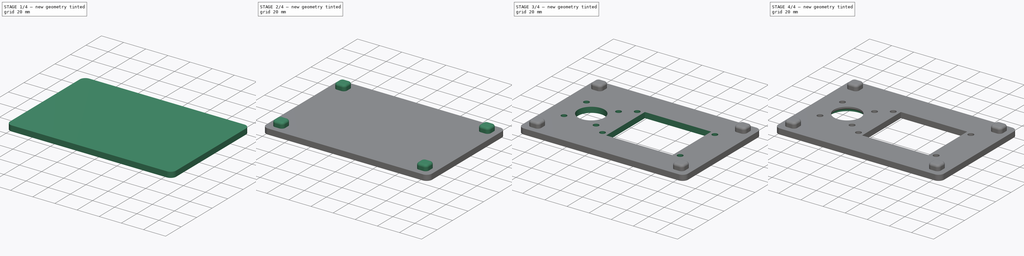
[diagram: build sequence overview — one tinted view per stage of 4, left to right]
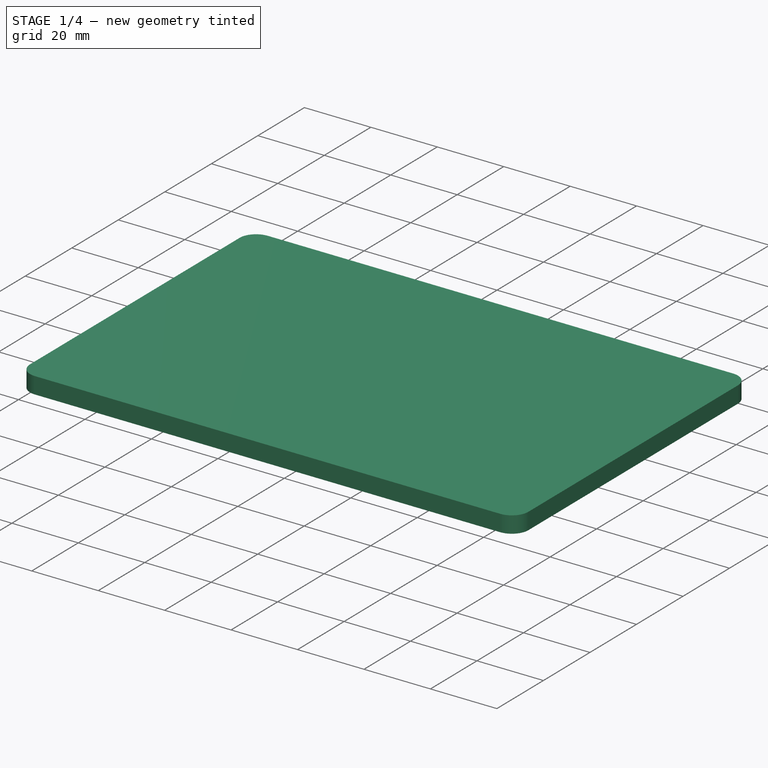
[diagram: stage 1 of 4 — iso view after this stage's code; geometry added in this stage tinted green]
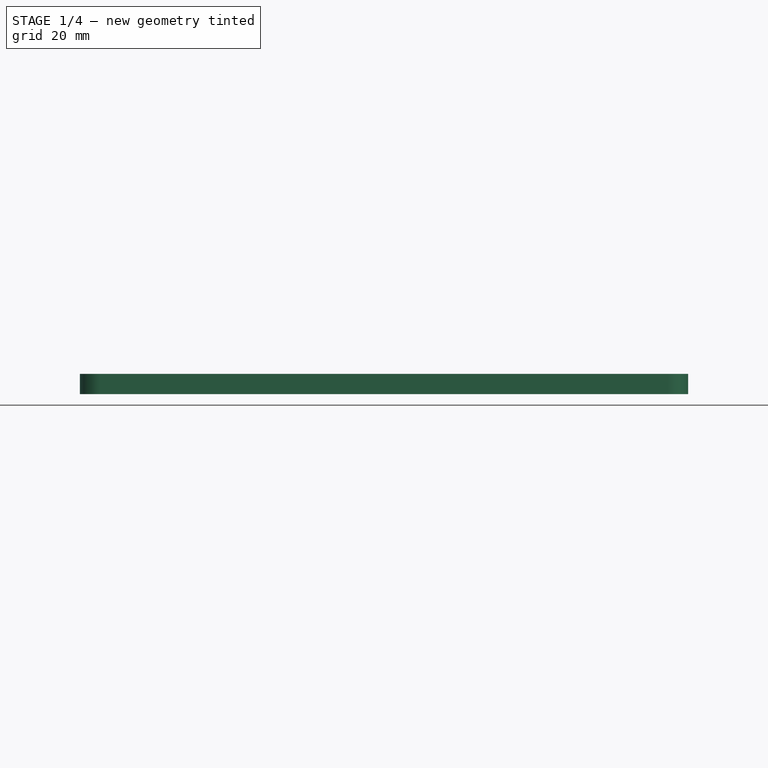
[diagram: stage 1 of 4 — front view after this stage's code; geometry added in this stage tinted green]
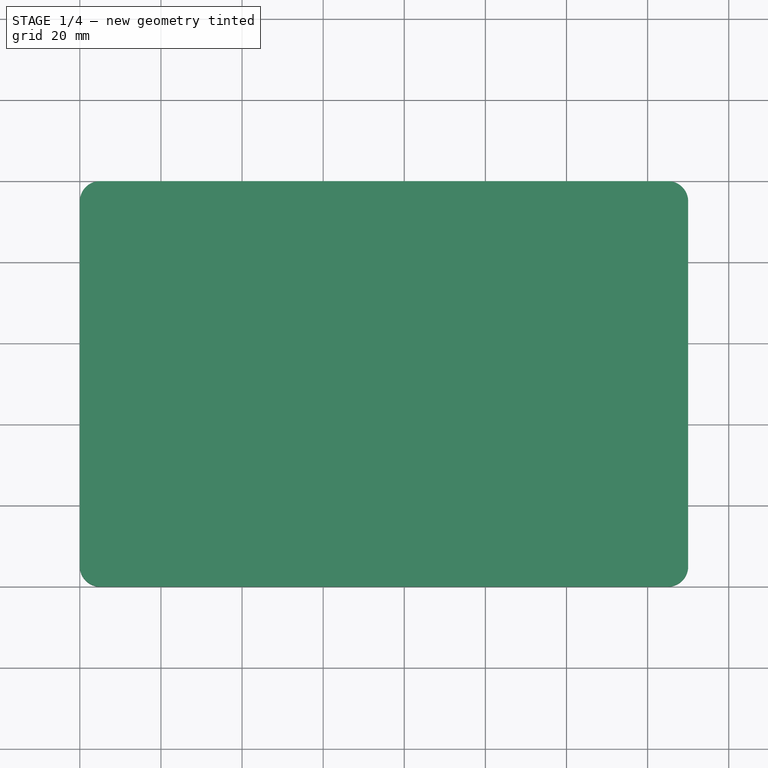
[diagram: stage 1 of 4 — top view after this stage's code; geometry added in this stage tinted green]
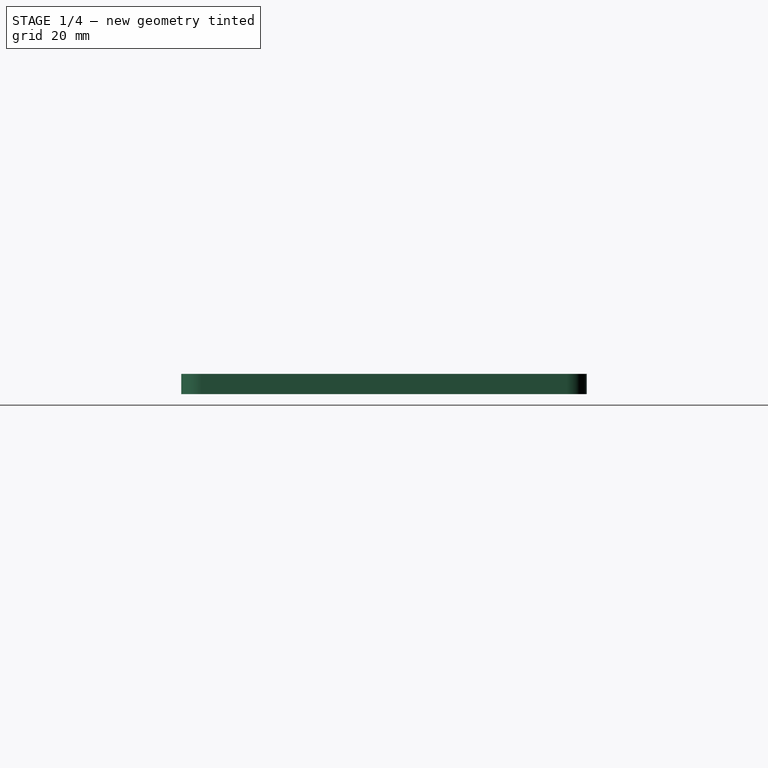
[diagram: stage 1 of 4 — right view after this stage's code; geometry added in this stage tinted green]
FCSTD DOCUMENT  (FreeCAD 0.16R6607 (Git))
Label: taz_dual_harness_internal
License: CC-BY 3.0
LicenseURL: http://creativecommons.org/licenses/by/3.0/
objects: Sketcher::SketchObject×6, PartDesign::Pocket×4, PartDesign::Fillet×3, PartDesign::Pad×2, PartDesign::Chamfer×1
note: 22 computed .brp shape members not serialized (recipe doc carries the construction recipe); baked Part::Feature solids carry a one-line shape summary decoded from their .brp

FEATURE [Sketcher::SketchObject] Sketch
  sketch-geometry (4):
    g0: LineSegment StartX=0 StartY=0 StartZ=0 EndX=150 EndY=0 EndZ=0
    g1: LineSegment StartX=150 StartY=0 StartZ=0 EndX=150 EndY=100 EndZ=0
    g2: LineSegment StartX=150 StartY=100 StartZ=0 EndX=0 EndY=100 EndZ=0
    g3: LineSegment StartX=0 StartY=100 StartZ=0 EndX=0 EndY=0 EndZ=0
  constraints (11):
    c: Coincident(g0,g1)
    c: Coincident(g1,g2)
    c: Coincident(g2,g3)
    c: Coincident(g3,g0)
    c: Horizontal(g0)
    c: Horizontal(g2)
    c: Vertical(g1)
    c: Vertical(g3)
    c: Coincident(g0,g-1)
    c: DistanceY(g3) = -100
    c: DistanceX(g0) = 150
FEATURE [PartDesign::Pad] Pad
  Length = 5
  Length2 = 100
  Sketch = -> Sketch
  Type = 0
FEATURE [PartDesign::Fillet] Fillet
  Base = -> Pad [Edge1,Edge2,Edge5,Edge8]
  Radius = 5
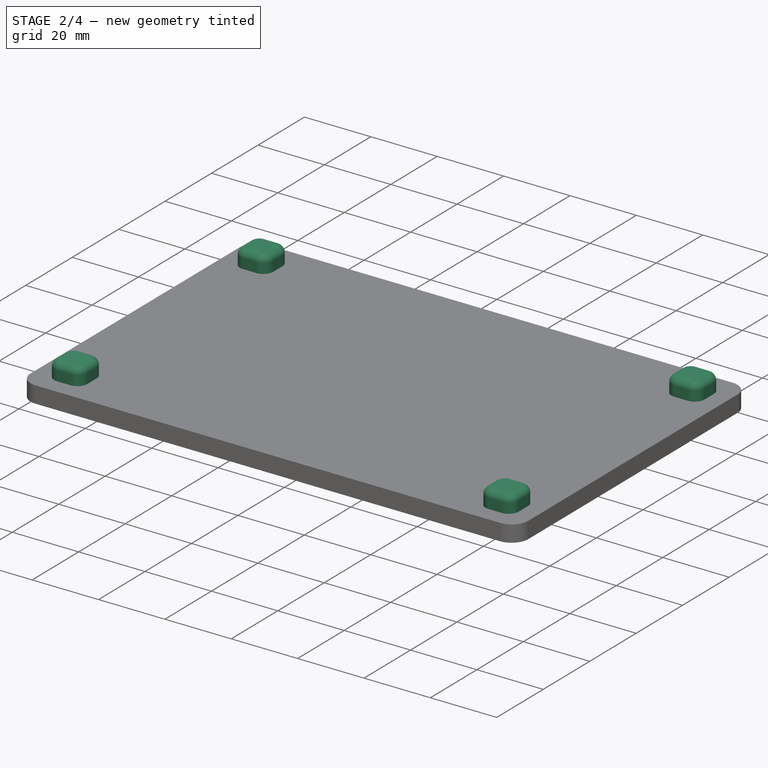
[diagram: stage 2 of 4 — iso view after this stage's code; geometry added in this stage tinted green]
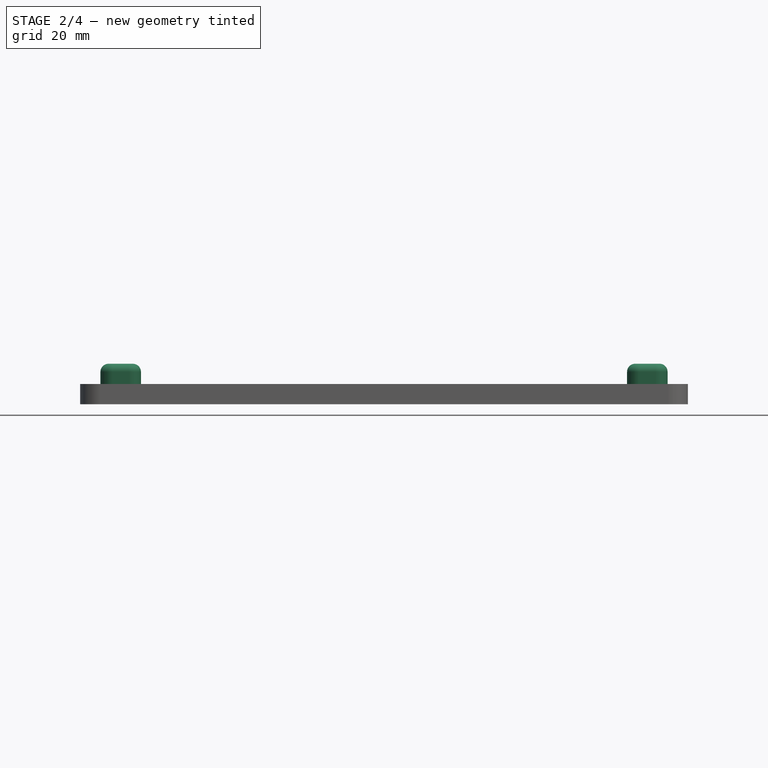
[diagram: stage 2 of 4 — front view after this stage's code; geometry added in this stage tinted green]
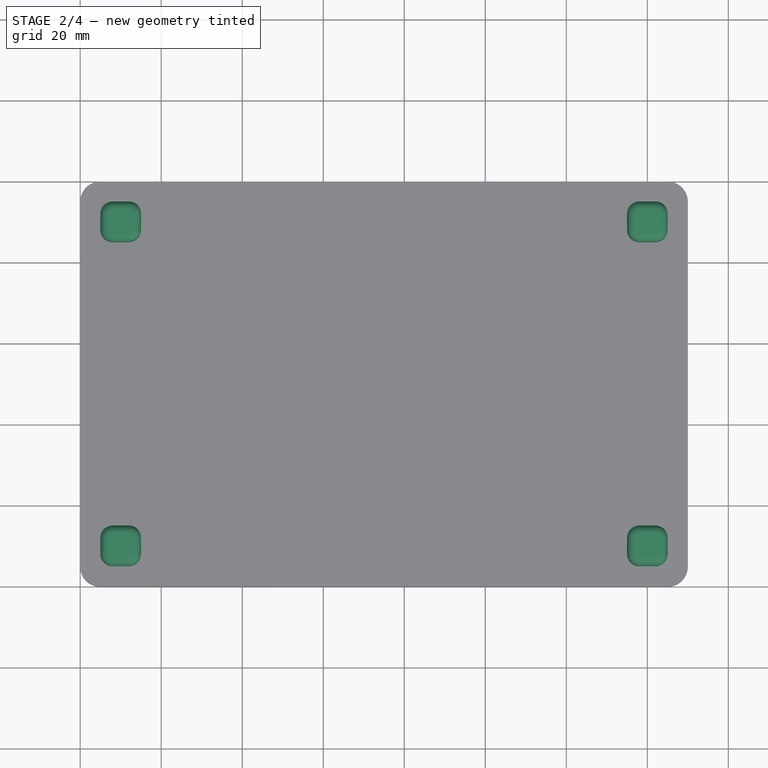
[diagram: stage 2 of 4 — top view after this stage's code; geometry added in this stage tinted green]
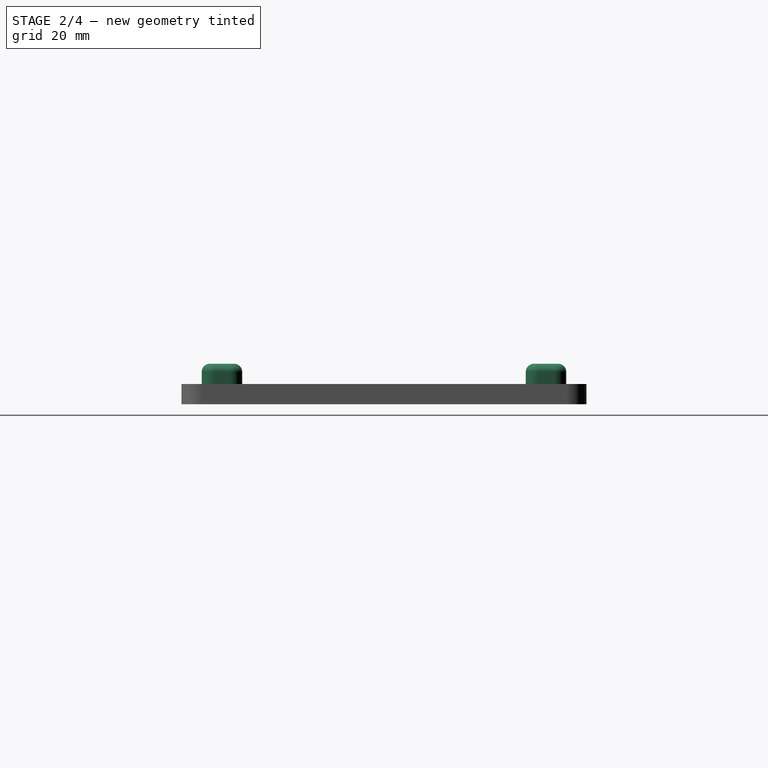
[diagram: stage 2 of 4 — right view after this stage's code; geometry added in this stage tinted green]
FEATURE [Sketcher::SketchObject] Sketch001
  Placement = pos=(0,0,5) rot=(0,0,1;0rad)
  Support = -> Fillet [Face5]
  sketch-geometry (16):
    g0: LineSegment StartX=5 StartY=5 StartZ=0 EndX=15 EndY=5 EndZ=0
    g1: LineSegment StartX=15 StartY=5 StartZ=0 EndX=15 EndY=15 EndZ=0
    g2: LineSegment StartX=15 StartY=15 StartZ=0 EndX=5 EndY=15 EndZ=0
    g3: LineSegment StartX=5 StartY=15 StartZ=0 EndX=5 EndY=5 EndZ=0
    g4: LineSegment StartX=145 StartY=95 StartZ=0 EndX=135 EndY=95 EndZ=0
    g5: LineSegment StartX=135 StartY=95 StartZ=0 EndX=135 EndY=85 EndZ=0
    g6: LineSegment StartX=135 StartY=85 StartZ=0 EndX=145 EndY=85 EndZ=0
    g7: LineSegment StartX=145 StartY=85 StartZ=0 EndX=145 EndY=95 EndZ=0
    g8: LineSegment StartX=5 StartY=95 StartZ=0 EndX=15 EndY=95 EndZ=0
    g9: LineSegment StartX=15 StartY=95 StartZ=0 EndX=15 EndY=85 EndZ=0
    g10: LineSegment StartX=15 StartY=85 StartZ=0 EndX=5 EndY=85 EndZ=0
    g11: LineSegment StartX=5 StartY=85 StartZ=0 EndX=5 EndY=95 EndZ=0
    g12: LineSegment StartX=145 StartY=5 StartZ=0 EndX=135 EndY=5 EndZ=0
    g13: LineSegment StartX=135 StartY=5 StartZ=0 EndX=135 EndY=15 EndZ=0
    g14: LineSegment StartX=135 StartY=15 StartZ=0 EndX=145 EndY=15 EndZ=0
    g15: LineSegment StartX=145 StartY=15 StartZ=0 EndX=145 EndY=5 EndZ=0
  constraints (32):
    c: Coincident(g0,g1)
    c: Coincident(g1,g2)
    c: Coincident(g2,g3)
    c: Coincident(g3,g0)
    c: Horizontal(g0)
    c: Horizontal(g2)
    c: Vertical(g1)
    c: Vertical(g3)
    c: Coincident(g4,g5)
    c: Coincident(g5,g6)
    c: Coincident(g6,g7)
    c: Coincident(g7,g4)
    c: Horizontal(g4)
    c: Horizontal(g6)
    c: Vertical(g5)
    c: Vertical(g7)
    c: Coincident(g8,g9)
    c: Coincident(g9,g10)
    c: Coincident(g10,g11)
    c: Coincident(g11,g8)
    c: Horizontal(g8)
    c: Horizontal(g10)
    c: Vertical(g9)
    c: Vertical(g11)
    c: Coincident(g12,g13)
    c: Coincident(g13,g14)
    c: Coincident(g14,g15)
    c: Coincident(g15,g12)
    c: Horizontal(g12)
    c: Horizontal(g14)
    c: Vertical(g13)
    c: Vertical(g15)
FEATURE [PartDesign::Pad] Pad001
  Length = 5
  Length2 = 100
  Sketch = -> Sketch001
  Type = 0
FEATURE [PartDesign::Fillet] Fillet001
  Base = -> Pad001 [Edge67,Edge70,Edge65,Edge68,Edge41,Edge43,Edge47,Edge45,Edge51,Edge49,Edge55,Edge60,Edge57,Edge59,Edge62,Edge53]
  Radius = 3
FEATURE [PartDesign::Fillet] Fillet002
  Base = -> Fillet001 [Edge113,Edge88,Edge99,Edge43]
  Radius = 2
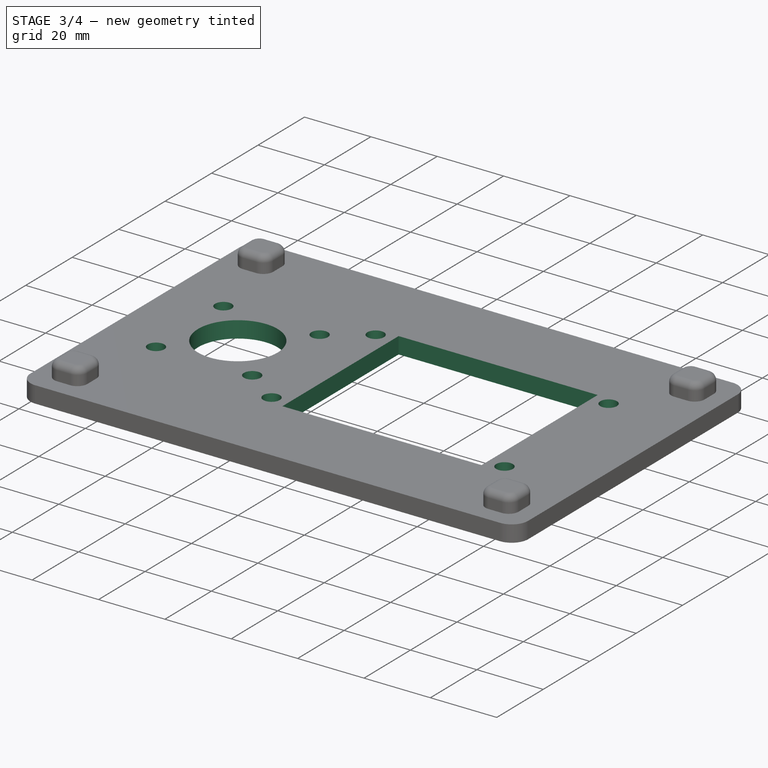
[diagram: stage 3 of 4 — iso view after this stage's code; geometry added in this stage tinted green]
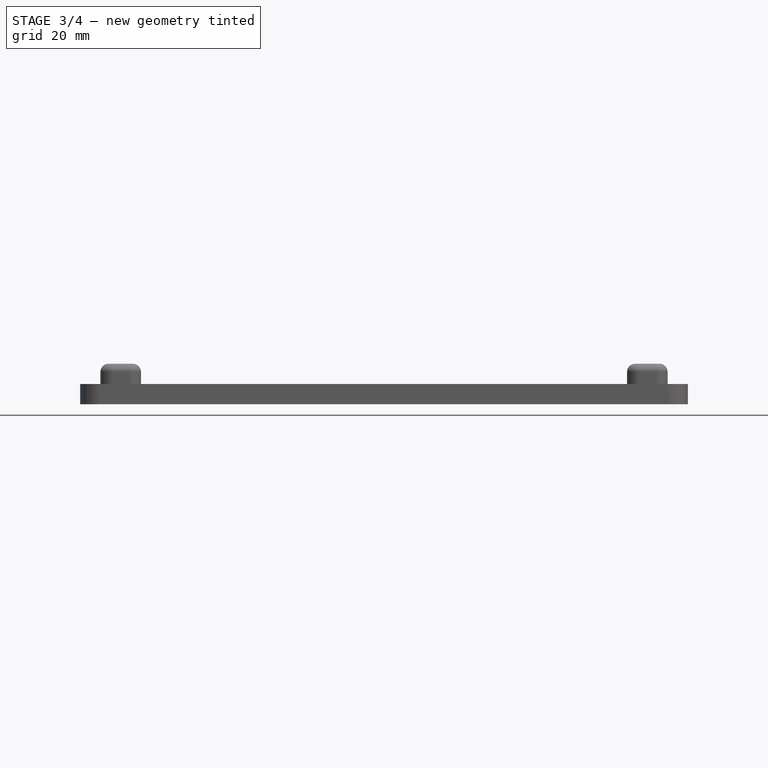
[diagram: stage 3 of 4 — front view after this stage's code; geometry added in this stage tinted green]
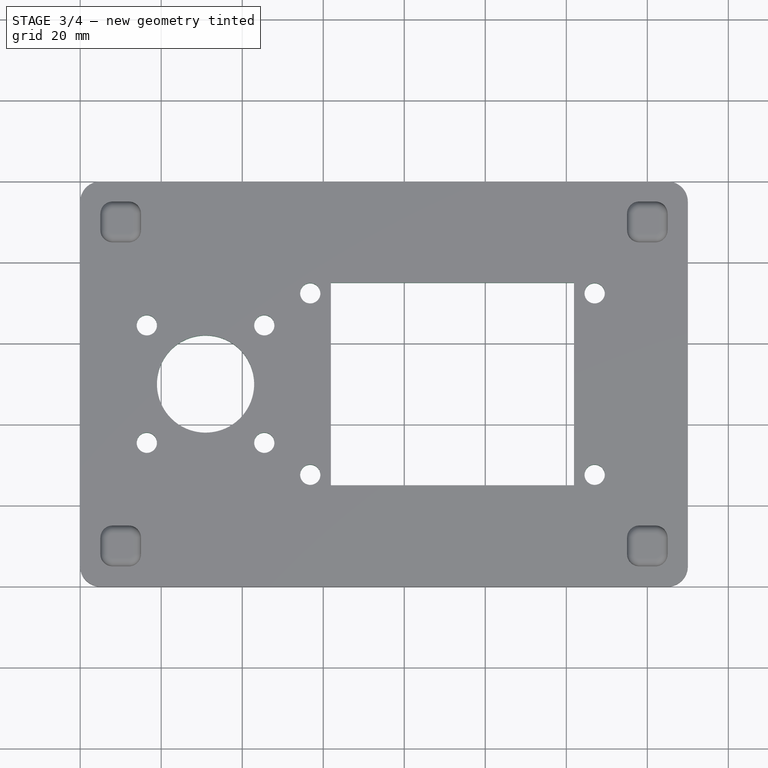
[diagram: stage 3 of 4 — top view after this stage's code; geometry added in this stage tinted green]
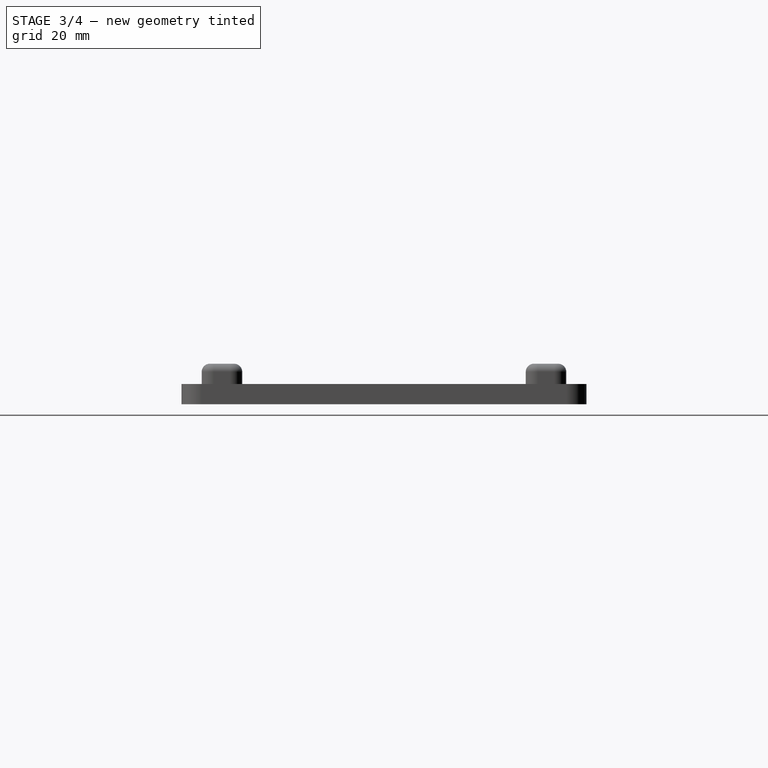
[diagram: stage 3 of 4 — right view after this stage's code; geometry added in this stage tinted green]
FEATURE [Sketcher::SketchObject] Sketch002
  ExternalGeometry = -> [Fillet002]
  Placement = pos=(0,0,5) rot=(0,0,1;0rad)
  Support = -> Fillet002 [Face4]
  sketch-geometry (16):
    g0: LineSegment [constr] StartX=53.8 StartY=24.6 StartZ=0 EndX=130 EndY=24.6 EndZ=0
    g1: LineSegment [constr] StartX=130 StartY=24.6 StartZ=0 EndX=130 EndY=75.4 EndZ=0
    g2: LineSegment [constr] StartX=130 StartY=75.4 StartZ=0 EndX=53.8 EndY=75.4 EndZ=0
    g3: LineSegment [constr] StartX=53.8 StartY=75.4 StartZ=0 EndX=53.8 EndY=24.6 EndZ=0
    g4: LineSegment [constr] StartX=53.8 StartY=75.4 StartZ=0 EndX=53.8 EndY=100 EndZ=0
    g5: LineSegment [constr] StartX=53.8 StartY=24.6 StartZ=0 EndX=0 EndY=24.6 EndZ=0
    g6: LineSegment [constr] StartX=130 StartY=24.6 StartZ=0 EndX=130 EndY=0 EndZ=0
    g7: LineSegment [constr] StartX=130 StartY=24.6 StartZ=0 EndX=150 EndY=24.6 EndZ=0
    g8: Circle CenterX=56.8 CenterY=72.4 CenterZ=0 NormalX=0 NormalY=0 NormalZ=1 Radius=2.5
    g9: Circle CenterX=127 CenterY=72.4 CenterZ=0 NormalX=0 NormalY=0 NormalZ=1 Radius=2.5
    g10: Circle CenterX=56.8 CenterY=27.6 CenterZ=0 NormalX=0 NormalY=0 NormalZ=1 Radius=2.5
    g11: Circle CenterX=127 CenterY=27.6 CenterZ=0 NormalX=0 NormalY=0 NormalZ=1 Radius=2.5
    g12: LineSegment [constr] StartX=56.8 StartY=72.4 StartZ=0 EndX=127 EndY=72.4 EndZ=0
    g13: LineSegment [constr] StartX=127 StartY=72.4 StartZ=0 EndX=127 EndY=27.6 EndZ=0
    g14: LineSegment [constr] StartX=127 StartY=27.6 StartZ=0 EndX=56.8 EndY=27.6 EndZ=0
    g15: LineSegment [constr] StartX=56.8 StartY=27.6 StartZ=0 EndX=56.8 EndY=72.4 EndZ=0
  constraints (44):
    c: Coincident(g0,g1)
    c: Coincident(g1,g2)
    c: Coincident(g2,g3)
    c: Coincident(g3,g0)
    c: Horizontal(g0)
    c: Horizontal(g2)
    c: Vertical(g1)
    c: Vertical(g3)
    c: Coincident(g4,g2)
    c: PointOnObject(g4,g-3)
    c: Vertical(g4)
    c: Coincident(g5,g0)
    c: PointOnObject(g5,g-2)
    c: Horizontal(g5)
    c: Coincident(g6,g0)
    c: PointOnObject(g6,g-1)
    c: Vertical(g6)
    c: Coincident(g7,g0)
    c: PointOnObject(g7,g-4)
    c: Horizontal(g7)
    c: Equal(g4,g6)
    c: DistanceX(g2) = -76.2
    c: DistanceY(g3) = -50.8
    c: Coincident(g12,g13)
    c: Coincident(g13,g14)
    c: Coincident(g14,g15)
    c: Coincident(g15,g12)
    c: Horizontal(g12)
    c: Horizontal(g14)
    c: Vertical(g13)
    c: Vertical(g15)
    c: Coincident(g12,g8)
    c: Coincident(g13,g11)
    c: Coincident(g9,g12)
    c: Coincident(g10,g14)
    c: DistanceX(g8,g2) = -3
    c: DistanceY(g2,g8) = -3
    c: DistanceY(g11,g0) = -3
    c: DistanceX(g0,g11) = -3
    c: Equal(g8,g9)
    c: Equal(g9,g11)
    c: Equal(g11,g10)
    c: Radius(g8) = 2.5
    c: DistanceX(g0,g7) = 20
FEATURE [PartDesign::Pocket] Pocket
  Length = 5
  Sketch = -> Sketch002
  Type = 0
FEATURE [Sketcher::SketchObject] Sketch003
  ExternalGeometry = -> [Pocket]
  Placement = pos=(0,0,5) rot=(0,0,1;0rad)
  Support = -> Pocket [Face4]
  sketch-geometry (6):
    g0: LineSegment StartX=61.9 StartY=75 StartZ=0 EndX=121.9 EndY=75 EndZ=0
    g1: LineSegment StartX=121.9 StartY=75 StartZ=0 EndX=121.9 EndY=25 EndZ=0
    g2: LineSegment StartX=121.9 StartY=25 StartZ=0 EndX=61.9 EndY=25 EndZ=0
    g3: LineSegment StartX=61.9 StartY=25 StartZ=0 EndX=61.9 EndY=75 EndZ=0
    g4: LineSegment [constr] StartX=56.8 StartY=27.6 StartZ=0 EndX=61.9 EndY=27.6 EndZ=0
    g5: LineSegment [constr] StartX=127 StartY=27.6 StartZ=0 EndX=121.9 EndY=27.6 EndZ=0
  constraints (17):
    c: Coincident(g0,g1)
    c: Coincident(g1,g2)
    c: Coincident(g2,g3)
    c: Coincident(g3,g0)
    c: Horizontal(g0)
    c: Horizontal(g2)
    c: Vertical(g1)
    c: Vertical(g3)
    c: DistanceY(g1,g0) = 50
    c: DistanceX(g0,g0) = -60
    c: DistanceY(g1,g-5) = -25
    c: Coincident(g4,g-6)
    c: PointOnObject(g4,g3)
    c: Horizontal(g4)
    c: Coincident(g5,g-7)
    c: PointOnObject(g5,g1)
    c: Equal(g4,g5)
FEATURE [PartDesign::Pocket] Pocket001
  Length = 5
  Sketch = -> Sketch003
  Type = 1
FEATURE [Sketcher::SketchObject] Sketch004
  ExternalGeometry = -> [Pocket001]
  Placement = pos=(0,0,5) rot=(0,0,1;0rad)
  Support = -> Pocket001 [Face4]
  sketch-geometry (16):
    g0: Circle CenterX=16.45 CenterY=64.5 CenterZ=0 NormalX=0 NormalY=0 NormalZ=1 Radius=2.5
    g1: Circle CenterX=45.45 CenterY=64.5 CenterZ=0 NormalX=0 NormalY=0 NormalZ=1 Radius=2.5
    g2: Circle CenterX=45.45 CenterY=35.5 CenterZ=0 NormalX=0 NormalY=0 NormalZ=1 Radius=2.5
    g3: Circle CenterX=16.45 CenterY=35.5 CenterZ=0 NormalX=0 NormalY=0 NormalZ=1 Radius=2.5
    g4: Circle CenterX=30.95 CenterY=50 CenterZ=0 NormalX=0 NormalY=0 NormalZ=1 Radius=12
    g5: LineSegment [constr] StartX=16.45 StartY=64.5 StartZ=0 EndX=45.45 EndY=64.5 EndZ=0
    g6: LineSegment [constr] StartX=45.45 StartY=64.5 StartZ=0 EndX=45.45 EndY=35.5 EndZ=0
    g7: LineSegment [constr] StartX=45.45 StartY=35.5 StartZ=0 EndX=16.45 EndY=35.5 EndZ=0
    g8: LineSegment [constr] StartX=16.45 StartY=35.5 StartZ=0 EndX=16.45 EndY=64.5 EndZ=0
    g9: LineSegment [constr] StartX=16.45 StartY=50 StartZ=0 EndX=30.95 EndY=50 EndZ=0
    g10: LineSegment [constr] StartX=30.95 StartY=50 StartZ=0 EndX=45.45 EndY=50 EndZ=0
    g11: LineSegment [constr] StartX=30.95 StartY=64.5 StartZ=0 EndX=30.95 EndY=50 EndZ=0
    g12: LineSegment [constr] StartX=0 StartY=50 StartZ=0 EndX=16.45 EndY=50 EndZ=0
    g13: LineSegment [constr] StartX=45.45 StartY=50 StartZ=0 EndX=61.9 EndY=50 EndZ=0
    g14: LineSegment [constr] StartX=30.95 StartY=100 StartZ=0 EndX=30.95 EndY=50 EndZ=0
    g15: LineSegment [constr] StartX=30.95 StartY=0 StartZ=0 EndX=30.95 EndY=50 EndZ=0
  constraints (44):
    c: Radius(g1) = 2.5
    c: Equal(g1,g0)
    c: Equal(g0,g2)
    c: Equal(g2,g3)
    c: Coincident(g5,g6)
    c: Coincident(g6,g7)
    c: Coincident(g7,g8)
    c: Coincident(g8,g5)
    c: Horizontal(g5)
    c: Horizontal(g7)
    c: Vertical(g6)
    c: Vertical(g8)
    c: Coincident(g5,g0)
    c: Coincident(g6,g2)
    c: Coincident(g7,g3)
    c: Coincident(g1,g5)
    c: Radius(g4) = 12
    c: DistanceX(g7) = -29
    c: Equal(g6,g7)
    c: PointOnObject(g9,g8)
    c: Coincident(g9,g4)
    c: Parallel(g9,g-1)
    c: Coincident(g10,g4)
    c: PointOnObject(g10,g6)
    c: Equal(g10,g9)
    c: Parallel(g10,g-1)
    c: PointOnObject(g11,g5)
    c: Coincident(g11,g4)
    c: Equal(g11,g10)
    c: Parallel(g11,g-2)
    c: PointOnObject(g12,g-2)
    c: Coincident(g12,g9)
    c: Horizontal(g12)
    c: Coincident(g13,g10)
    c: PointOnObject(g13,g-3)
    c: Horizontal(g13)
    c: Equal(g12,g13)
    c: PointOnObject(g14,g-4)
    c: Coincident(g14,g4)
    c: Parallel(g14,g-2)
    c: PointOnObject(g15,g-5)
    c: Coincident(g15,g4)
    c: Vertical(g15)
    c: Equal(g15,g14)
FEATURE [PartDesign::Pocket] Pocket002
  Length = 5
  Sketch = -> Sketch004
  Type = 1
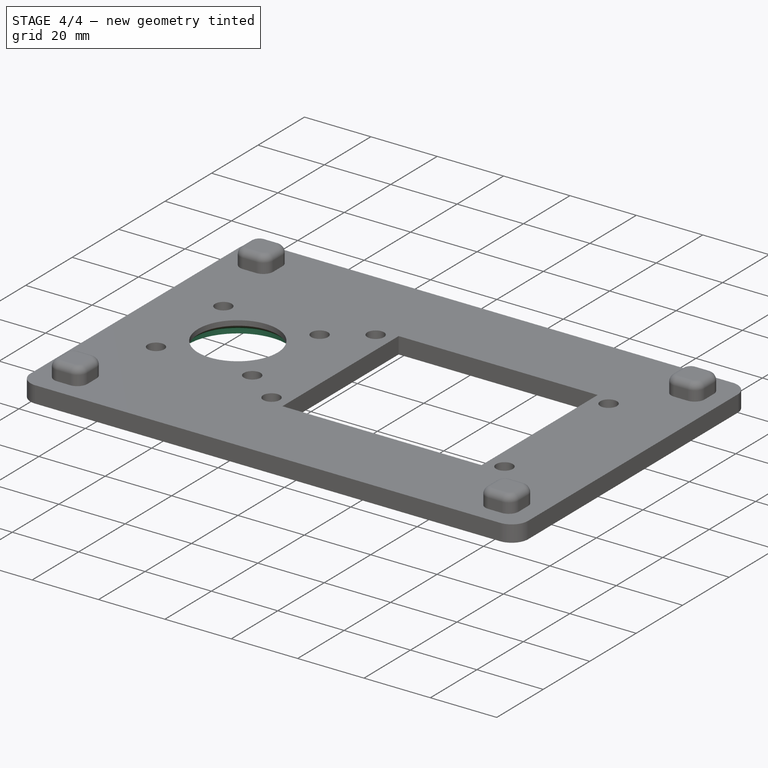
[diagram: stage 4 of 4 — iso view after this stage's code; geometry added in this stage tinted green]
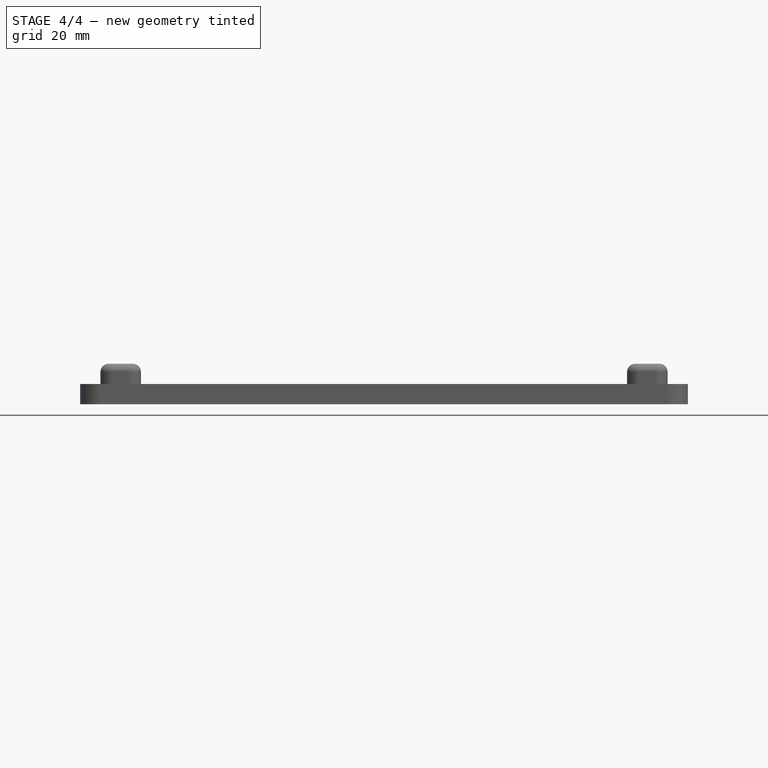
[diagram: stage 4 of 4 — front view after this stage's code; geometry added in this stage tinted green]
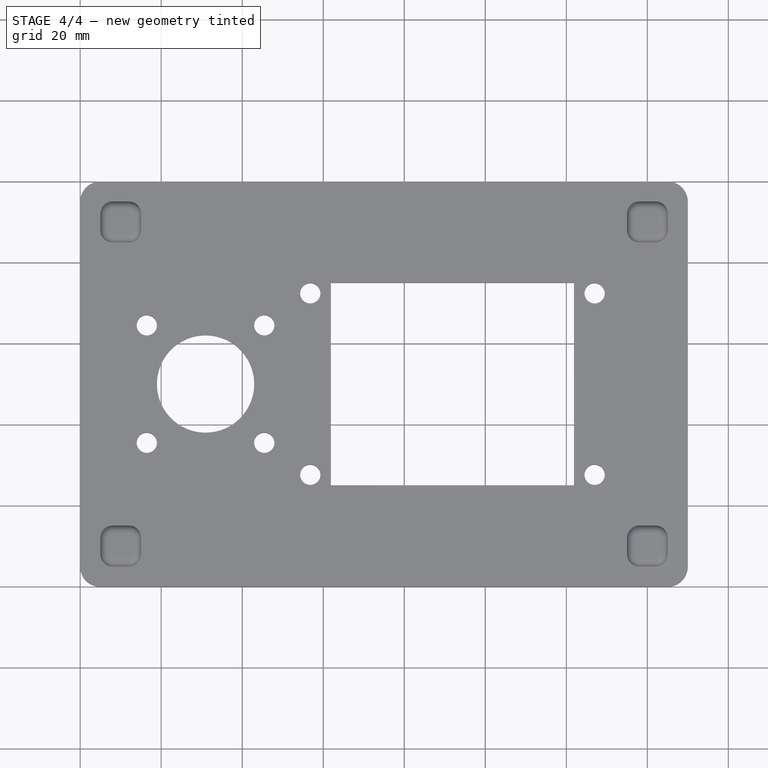
[diagram: stage 4 of 4 — top view after this stage's code; geometry added in this stage tinted green]
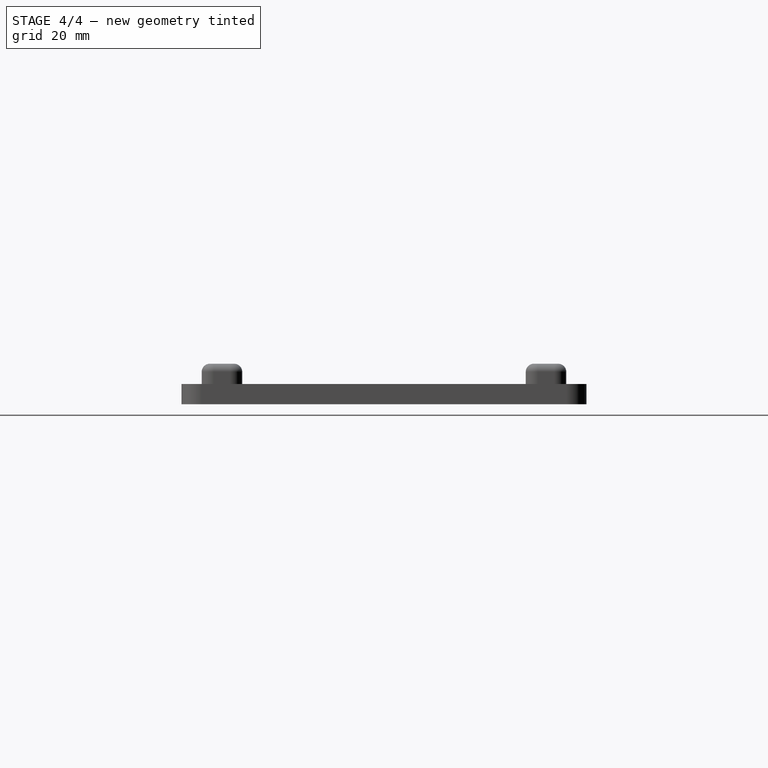
[diagram: stage 4 of 4 — right view after this stage's code; geometry added in this stage tinted green]
FEATURE [Sketcher::SketchObject] Sketch005
  ExternalGeometry = -> [Pocket002]
  Placement = pos=(0,0,0) rot=(1,0,0;3.14159rad)
  Support = -> Pocket002 [Face64]
  sketch-geometry (1):
    g0: Circle CenterX=30.95 CenterY=-50 CenterZ=0 NormalX=0 NormalY=0 NormalZ=1 Radius=15
  constraints (2):
    c: Coincident(g0,g-3)
    c: Radius(g0) = 15
FEATURE [PartDesign::Pocket] Pocket003
  Length = 2.5
  Sketch = -> Sketch005
  Type = 0
FEATURE [PartDesign::Chamfer] Chamfer
  Base = -> Pocket003 [Edge225,Edge171]
  Size = 1
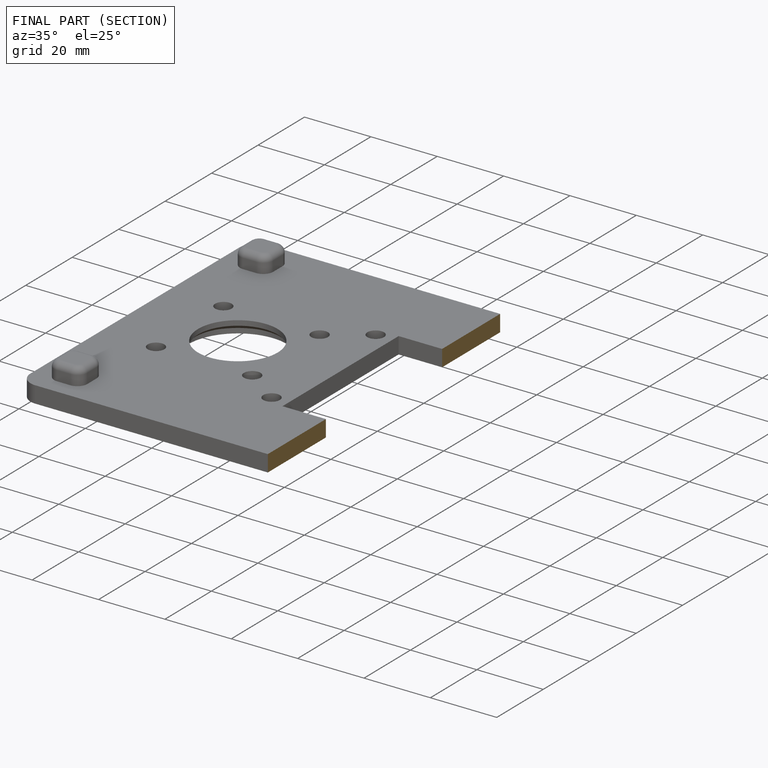
[diagram: finished part — half-section view (interior)]
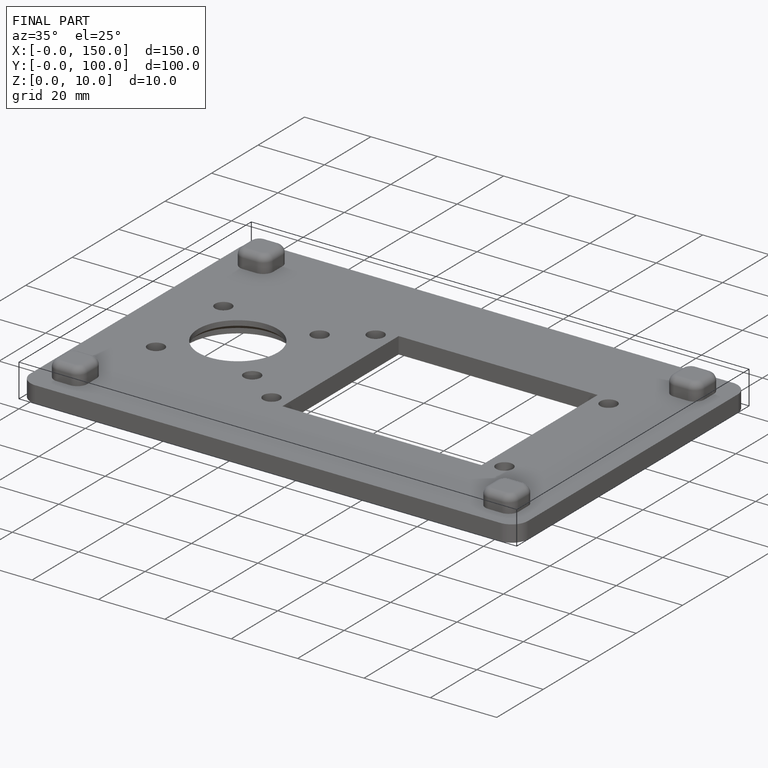
[diagram: finished part — iso view with bounding-box wireframe]
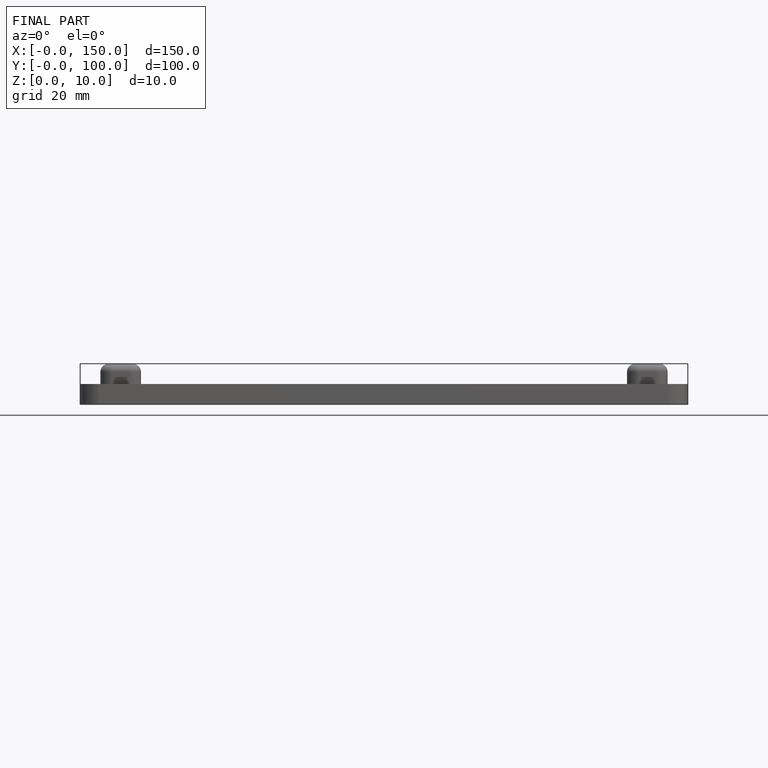
[diagram: finished part — front view with bounding-box wireframe]
